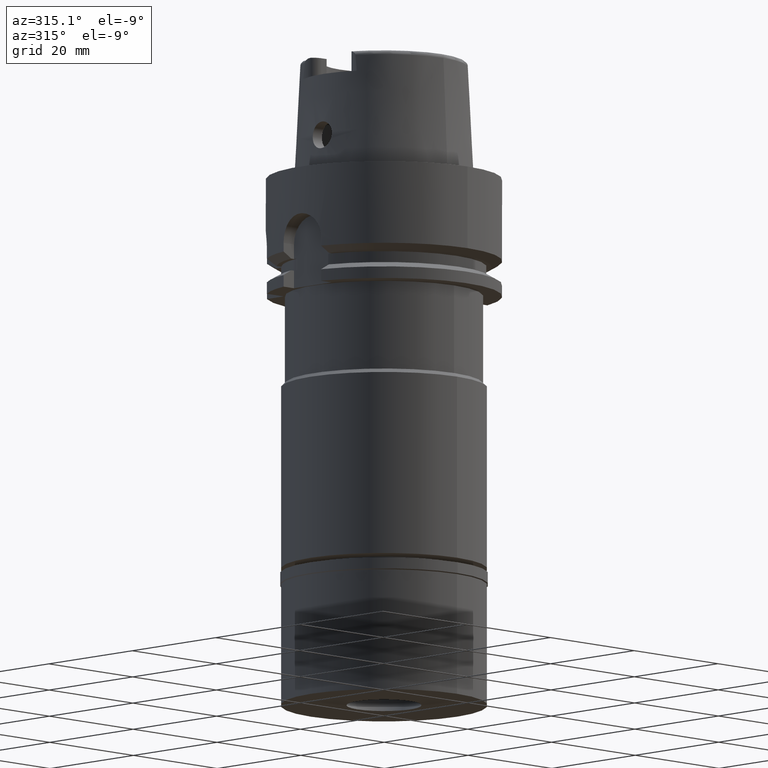
[diagram: clean part render]
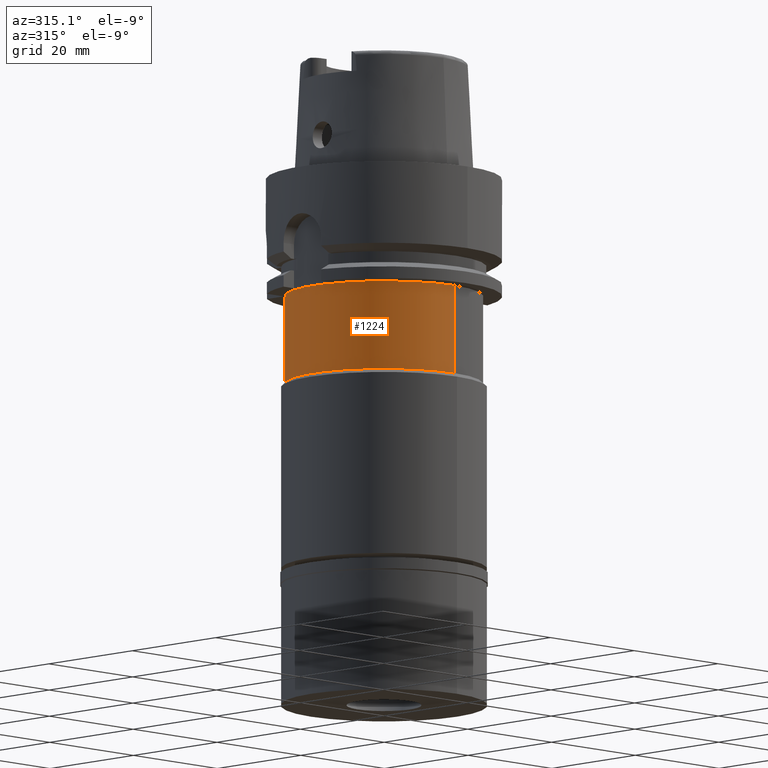
[diagram: same view with one face highlighted and labeled with its STEP entity id]
A machine part, auxiliary view. The second image highlights one B-rep face of the part: STEP entity #1224.
In plain terms, the highlighted cylindrical surface (partial cylindrical patch) has radius 16.8 mm, axis along (0, 0, -1).
Its self-contained STEP definition (entity closure, byte-faithful):
#275 = CARTESIAN_POINT ( 'NONE',  ( 0.0000000000000000000, 16.80000000000000071, -35.00000000000000000 ) ) ;
#482 = CARTESIAN_POINT ( 'NONE',  ( 0.0000000000000000000, 16.80000000000000071, -20.00000000000000000 ) ) ;
#490 = CARTESIAN_POINT ( 'NONE',  ( 0.0000000000000000000, -16.80000000000000071, -35.00000000000000000 ) ) ;
#688 = EDGE_CURVE ( 'NONE', #1761, #2455, #4681, .T. ) ;
#953 = VECTOR ( 'NONE', #4373, 1000.000000000000000 ) ;
#986 = ORIENTED_EDGE ( 'NONE', *, *, #3552, .T. ) ;
#999 = DIRECTION ( 'NONE',  ( 0.0000000000000000000, 0.0000000000000000000, -1.000000000000000000 ) ) ;
#1043 = AXIS2_PLACEMENT_3D ( 'NONE', #2835, #4576, #1575 ) ;
#1224 = ADVANCED_FACE ( 'NONE', ( #5387 ), #2765, .T. ) ;
#1575 = DIRECTION ( 'NONE',  ( 0.0000000000000000000, 1.000000000000000000, 0.0000000000000000000 ) ) ;
#1703 = CARTESIAN_POINT ( 'NONE',  ( 0.0000000000000000000, 16.80000000000000071, -20.00000000000000000 ) ) ;
#1761 = VERTEX_POINT ( 'NONE', #2473 ) ;
#1966 = VECTOR ( 'NONE', #3842, 1000.000000000000000 ) ;
#2048 = ORIENTED_EDGE ( 'NONE', *, *, #2524, .F. ) ;
#2240 = LINE ( 'NONE', #482, #1966 ) ;
#2265 = DIRECTION ( 'NONE',  ( 0.0000000000000000000, -1.000000000000000000, 0.0000000000000000000 ) ) ;
#2284 = AXIS2_PLACEMENT_3D ( 'NONE', #3227, #2790, #4950 ) ;
#2455 = VERTEX_POINT ( 'NONE', #1703 ) ;
#2473 = CARTESIAN_POINT ( 'NONE',  ( 0.0000000000000000000, -16.80000000000000071, -20.00000000000000000 ) ) ;
#2492 = EDGE_CURVE ( 'NONE', #2455, #5127, #2240, .T. ) ;
#2524 = EDGE_CURVE ( 'NONE', #1761, #2758, #5312, .T. ) ;
#2758 = VERTEX_POINT ( 'NONE', #490 ) ;
#2765 = CYLINDRICAL_SURFACE ( 'NONE', #2284, 16.80000000000000071 ) ;
#2790 = DIRECTION ( 'NONE',  ( 0.0000000000000000000, 0.0000000000000000000, -1.000000000000000000 ) ) ;
#2835 = CARTESIAN_POINT ( 'NONE',  ( 0.0000000000000000000, 0.0000000000000000000, -35.00000000000000000 ) ) ;
#2977 = CIRCLE ( 'NONE', #1043, 16.80000000000000071 ) ;
#3227 = CARTESIAN_POINT ( 'NONE',  ( 0.0000000000000000000, 1.532829166152999980E-14, 25.16499999999999915 ) ) ;
#3552 = EDGE_CURVE ( 'NONE', #5127, #2758, #2977, .T. ) ;
#3842 = DIRECTION ( 'NONE',  ( 0.0000000000000000000, 0.0000000000000000000, -1.000000000000000000 ) ) ;
#3944 = CARTESIAN_POINT ( 'NONE',  ( 0.0000000000000000000, 1.532829166152999980E-14, -20.00000000000000000 ) ) ;
#4018 = ORIENTED_EDGE ( 'NONE', *, *, #2492, .T. ) ;
#4250 = EDGE_LOOP ( 'NONE', ( #986, #2048, #5076, #4018 ) ) ;
#4373 = DIRECTION ( 'NONE',  ( 0.0000000000000000000, 0.0000000000000000000, -1.000000000000000000 ) ) ;
#4576 = DIRECTION ( 'NONE',  ( 0.0000000000000000000, 0.0000000000000000000, 1.000000000000000000 ) ) ;
#4677 = AXIS2_PLACEMENT_3D ( 'NONE', #3944, #999, #2265 ) ;
#4681 = CIRCLE ( 'NONE', #4677, 16.80000000000000071 ) ;
#4870 = CARTESIAN_POINT ( 'NONE',  ( 0.0000000000000000000, -16.80000000000000071, -20.00000000000000000 ) ) ;
#4950 = DIRECTION ( 'NONE',  ( 0.0000000000000000000, -1.000000000000000000, 0.0000000000000000000 ) ) ;
#5076 = ORIENTED_EDGE ( 'NONE', *, *, #688, .T. ) ;
#5127 = VERTEX_POINT ( 'NONE', #275 ) ;
#5312 = LINE ( 'NONE', #4870, #953 ) ;
#5387 = FACE_OUTER_BOUND ( 'NONE', #4250, .T. ) ;